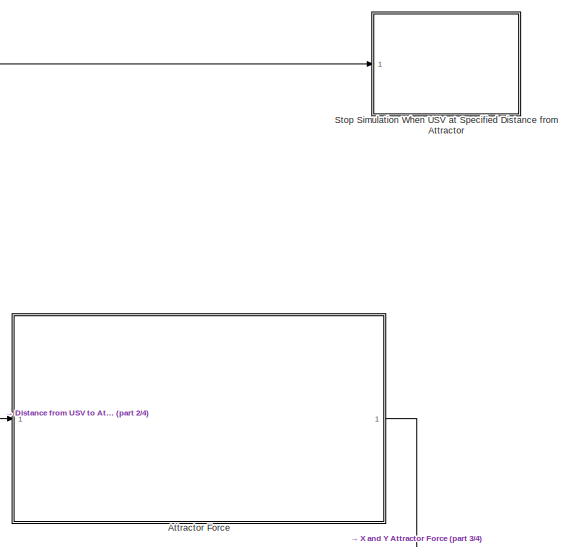
[diagram: root canvas - part 1/4, top center region]
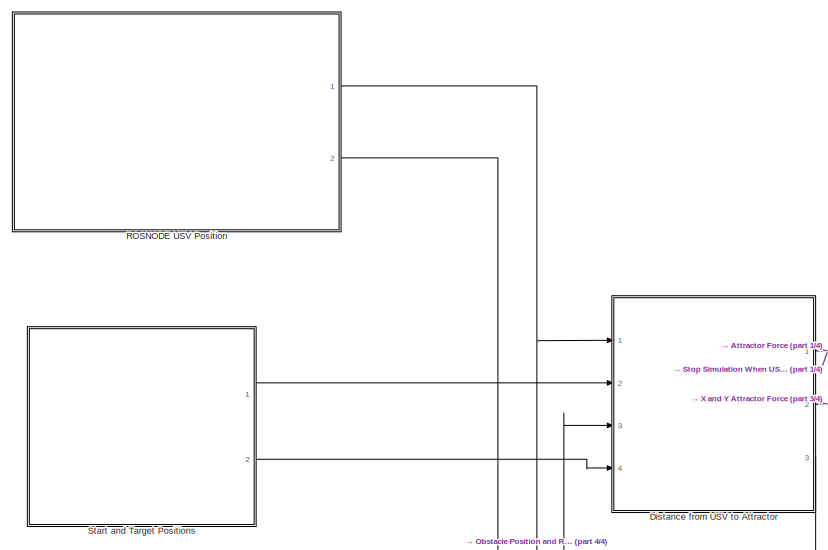
[diagram: root canvas - part 2/4, top left region]
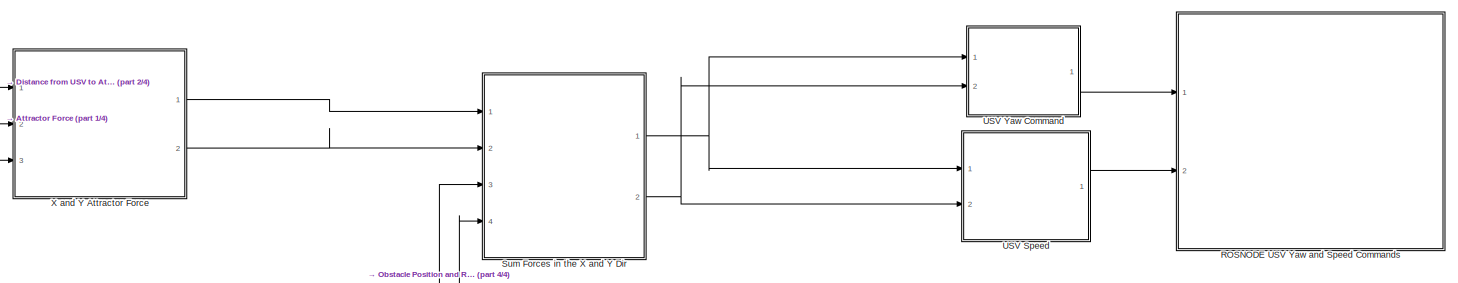
[diagram: root canvas - part 3/4, bottom right region]
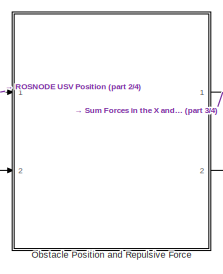
[diagram: root canvas - part 4/4, bottom center region]
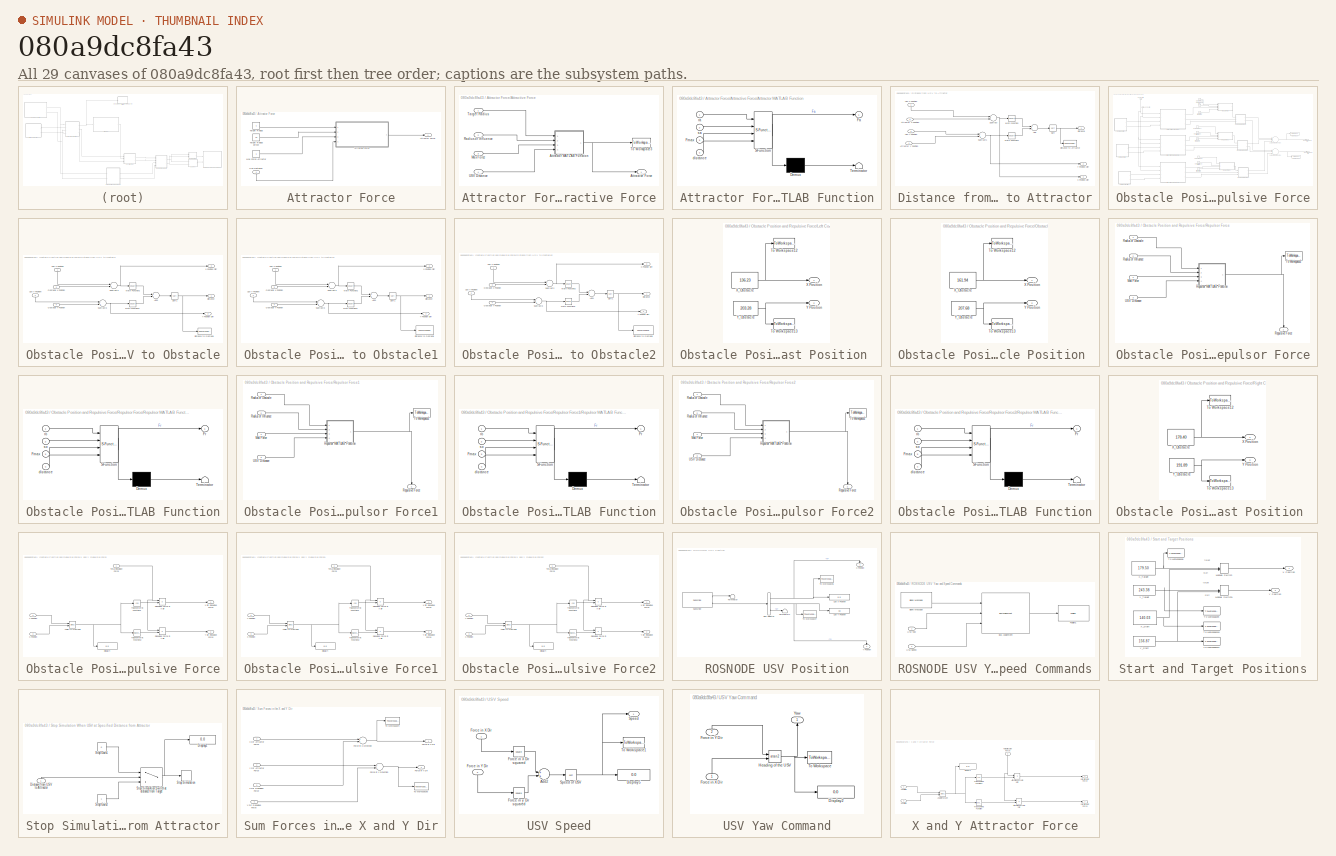
[diagram: thumbnail index - all 29 canvases of the model, root first then tree order]
MODEL slx_080a9dc8fa43
KIND model
CONFIG AbsTol = auto
CONFIG FixedStep = auto
CONFIG MaxStep = auto
CONFIG MinStep = auto
CONFIG RelTol = 1e-3
CONFIG SampleTimeConstraint = Unconstrained
CONFIG Solver = VariableStepAuto
CONFIG SolverMode = Auto
CONFIG SolverName = VariableStepAuto
CONFIG StartTime = 0.0
CONFIG StopTime = inf
BLOCK [SubSystem] Attractor Force
  Ports = [1, 1]
  RequestExecContextInheritance = off
  Variant = off
BLOCK [SubSystem] Attractor Force/Attractive Force
  Ports = [4, 1]
  RequestExecContextInheritance = off
  Variant = off
BLOCK [Outport] Attractor Force/Attractive Force/Attractive Force
  IconDisplay = Port number
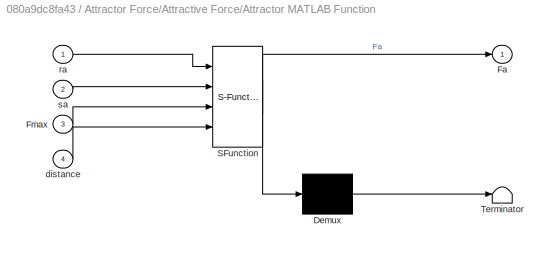
BLOCK [SubSystem] Attractor Force/Attractive Force/Attractor MATLAB Function
  ErrorFcn = Stateflow.Translate.translate
  PermitHierarchicalResolution = ExplicitOnly
  Ports = [4, 1]
  RequestExecContextInheritance = off
  SFBlockType = MATLAB Function
  TreatAsAtomicUnit = on
  Variant = off
BLOCK [Demux] Attractor Force/Attractive Force/Attractor MATLAB Function/ Demux 
  Outputs = 1
  Ports = [1, 1]
BLOCK [S-Function] Attractor Force/Attractive Force/Attractor MATLAB Function/ SFunction 
  EnableBusSupport = on
  FunctionName = sf_sfun
  PortCounts = [4 2]
  Ports = [4, 2]
  SFunctionDeploymentMode = off
  Tag = Stateflow S-Function pot_field_3obs 2
BLOCK [Terminator] Attractor Force/Attractive Force/Attractor MATLAB Function/ Terminator 
BLOCK [Outport] Attractor Force/Attractive Force/Attractor MATLAB Function/Fa
  IconDisplay = Port number
BLOCK [Inport] Attractor Force/Attractive Force/Attractor MATLAB Function/Fmax
  IconDisplay = Port number
  Port = 3
BLOCK [Inport] Attractor Force/Attractive Force/Attractor MATLAB Function/distance
  IconDisplay = Port number
  Port = 4
BLOCK [Inport] Attractor Force/Attractive Force/Attractor MATLAB Function/ra
  IconDisplay = Port number
BLOCK [Inport] Attractor Force/Attractive Force/Attractor MATLAB Function/sa
  IconDisplay = Port number
  Port = 2
BLOCK [Inport] Attractor Force/Attractive Force/Max Force
  IconDisplay = Port number
  Port = 3
BLOCK [Inport] Attractor Force/Attractive Force/Radius of Influence
  IconDisplay = Port number
  Port = 2
BLOCK [Inport] Attractor Force/Attractive Force/Target Radius
  IconDisplay = Port number
BLOCK [ToWorkspace] Attractor Force/Attractive Force/To Workspace3
  FixptAsFi = on
  MaxDataPoints = inf
  Ports = [1]
  SampleTime = -1
  Save2DSignal = 3-D array (concatenate along third dimension)
  SaveFormat = Timeseries
  VariableName = Fatr
BLOCK [Inport] Attractor Force/Attractive Force/USV Distance
  IconDisplay = Port number
  Port = 4
BLOCK [Outport] Attractor Force/Attractor Force
  IconDisplay = Port number
BLOCK [Constant] Attractor Force/Max Force Attractor
  OutDataTypeStr = Inherit: Inherit via back propagation
BLOCK [Constant] Attractor Force/Target Radius
  OutDataTypeStr = Inherit: Inherit via back propagation
BLOCK [Constant] Attractor Force/Target Radius Effect
  OutDataTypeStr = Inherit: Inherit via back propagation
  Value = 10
BLOCK [Inport] Attractor Force/USV Distance
  IconDisplay = Port number
BLOCK [SubSystem] Distance from USV to Attractor
  Ports = [4, 3]
  RequestExecContextInheritance = off
  Variant = off
BLOCK [Sum] Distance from USV to Attractor/Add
  InputSameDT = off
  OutDataTypeStr = Inherit: Inherit via back propagation
  Ports = [2, 1]
  SaturateOnIntegerOverflow = off
BLOCK [Inport] Distance from USV to Attractor/Attractor X Position
  IconDisplay = Port number
  Port = 2
BLOCK [Inport] Distance from USV to Attractor/Attractor Y Position
  IconDisplay = Port number
  Port = 4
BLOCK [Outport] Distance from USV to Attractor/Distance
  IconDisplay = Port number
BLOCK [ToWorkspace] Distance from USV to Attractor/Distance to Attractor
  FixptAsFi = on
  MaxDataPoints = inf
  Ports = [1]
  SampleTime = -1
  Save2DSignal = 3-D array (concatenate along third dimension)
  SaveFormat = Timeseries
  VariableName = Dist2Target
BLOCK [Math] Distance from USV to Attractor/Math Function
  Operator = square
  OutDataTypeStr = Inherit: Inherit via back propagation
  Ports = [1, 1]
BLOCK [Math] Distance from USV to Attractor/Math Function1
  Operator = square
  OutDataTypeStr = Inherit: Inherit via back propagation
  Ports = [1, 1]
BLOCK [Sqrt] Distance from USV to Attractor/Sqrt
  OutDataTypeStr = Inherit: Inherit via back propagation
BLOCK [Sum] Distance from USV to Attractor/Subtract
  InputSameDT = off
  Inputs = -+
  OutDataTypeStr = Inherit: Inherit via back propagation
  Ports = [2, 1]
  SaturateOnIntegerOverflow = off
BLOCK [Sum] Distance from USV to Attractor/Subtract1
  InputSameDT = off
  Inputs = -+
  OutDataTypeStr = Inherit: Inherit via back propagation
  Ports = [2, 1]
  SaturateOnIntegerOverflow = off
BLOCK [Inport] Distance from USV to Attractor/USV X Position
  IconDisplay = Port number
BLOCK [Inport] Distance from USV to Attractor/USV Y Position
  IconDisplay = Port number
  Port = 3
BLOCK [Outport] Distance from USV to Attractor/X Position Diff
  IconDisplay = Port number
  Port = 3
BLOCK [Outport] Distance from USV to Attractor/Y Position Diff
  IconDisplay = Port number
  Port = 2
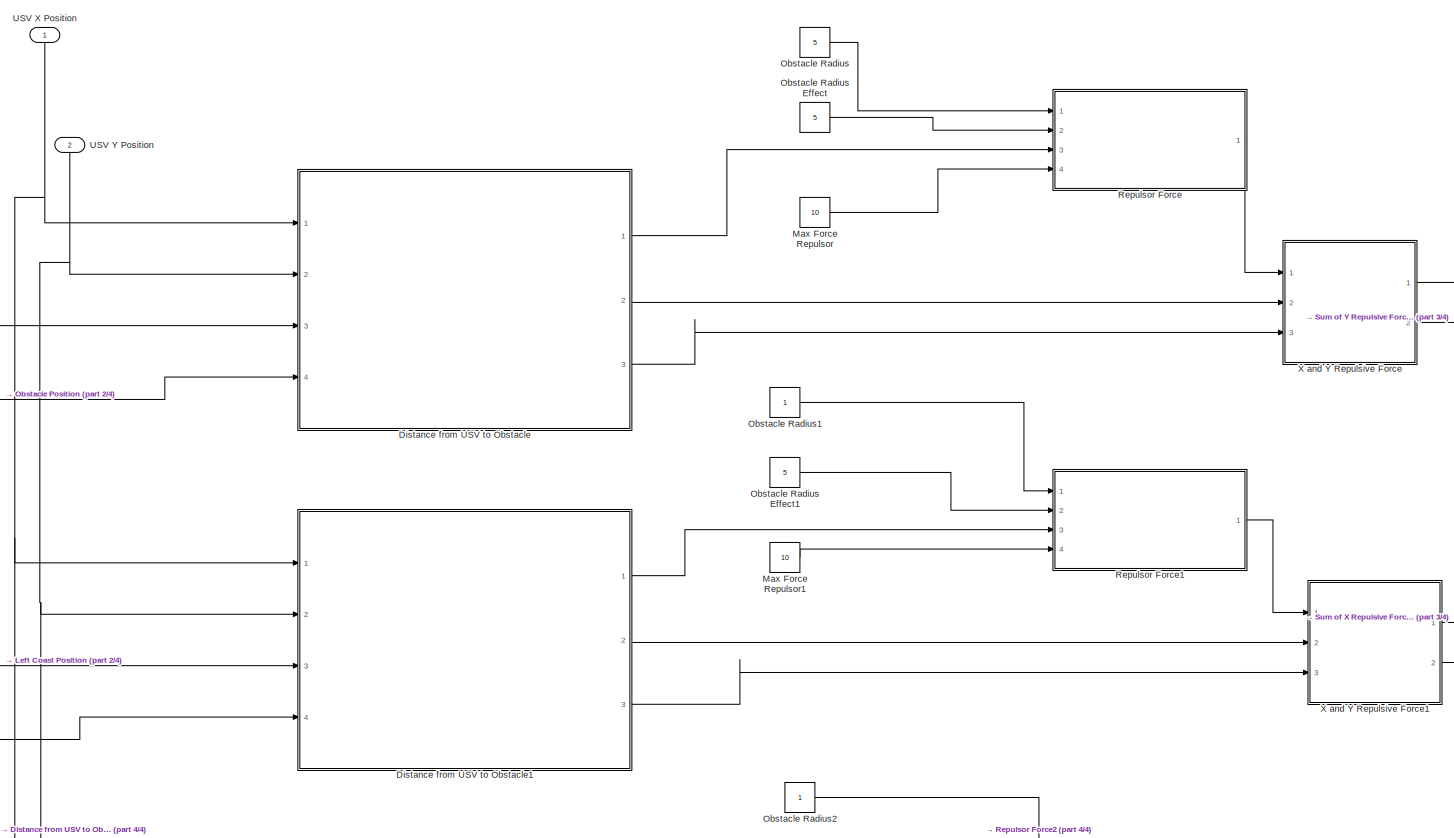
[diagram: Obstacle Position and Repulsive Force - part 1/4, central region]
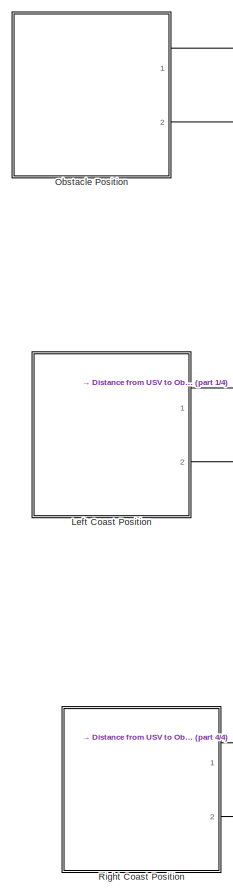
[diagram: Obstacle Position and Repulsive Force - part 2/4, left side, full height]
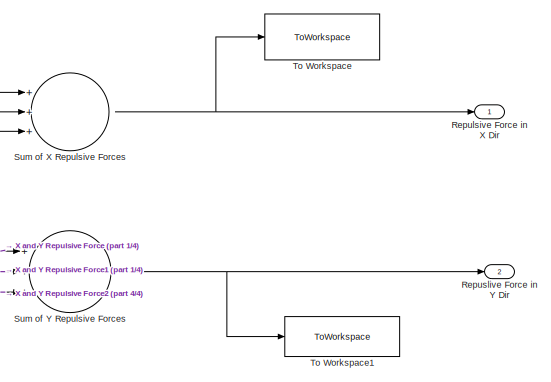
[diagram: Obstacle Position and Repulsive Force - part 3/4, middle right region]
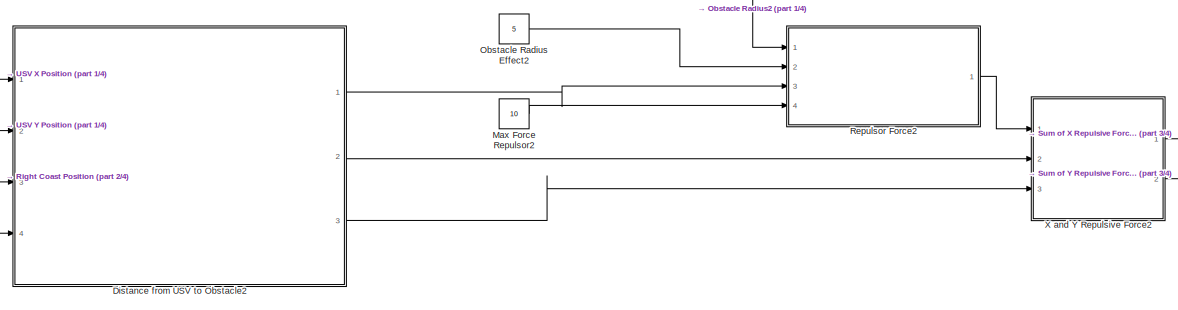
[diagram: Obstacle Position and Repulsive Force - part 4/4, bottom center region]
BLOCK [SubSystem] Obstacle Position and Repulsive Force
  Ports = [2, 2]
  RequestExecContextInheritance = off
  Variant = off
BLOCK [SubSystem] Obstacle Position and Repulsive Force/Distance from USV to Obstacle
  Ports = [4, 3]
  RequestExecContextInheritance = off
  Variant = off
BLOCK [Sum] Obstacle Position and Repulsive Force/Distance from USV to Obstacle/Add1
  InputSameDT = off
  OutDataTypeStr = Inherit: Inherit via back propagation
  Ports = [2, 1]
  SaturateOnIntegerOverflow = off
BLOCK [Outport] Obstacle Position and Repulsive Force/Distance from USV to Obstacle/Distance
  IconDisplay = Port number
BLOCK [ToWorkspace] Obstacle Position and Repulsive Force/Distance from USV to Obstacle/Distance to Obstacle
  FixptAsFi = on
  MaxDataPoints = inf
  Ports = [1]
  SampleTime = -1
  Save2DSignal = 3-D array (concatenate along third dimension)
  SaveFormat = Timeseries
  VariableName = Dist2Obs
BLOCK [Math] Obstacle Position and Repulsive Force/Distance from USV to Obstacle/Math Function2
  Operator = square
  OutDataTypeStr = Inherit: Inherit via back propagation
  Ports = [1, 1]
BLOCK [Math] Obstacle Position and Repulsive Force/Distance from USV to Obstacle/Math Function3
  Operator = square
  OutDataTypeStr = Inherit: Inherit via back propagation
  Ports = [1, 1]
BLOCK [Inport] Obstacle Position and Repulsive Force/Distance from USV to Obstacle/Obstacle X Position
  IconDisplay = Port number
  Port = 3
BLOCK [Inport] Obstacle Position and Repulsive Force/Distance from USV to Obstacle/Obstacle Y Position
  IconDisplay = Port number
  Port = 4
BLOCK [Sqrt] Obstacle Position and Repulsive Force/Distance from USV to Obstacle/Sqrt1
  OutDataTypeStr = Inherit: Inherit via back propagation
BLOCK [Sum] Obstacle Position and Repulsive Force/Distance from USV to Obstacle/Subtract2
  InputSameDT = off
  Inputs = -+
  OutDataTypeStr = Inherit: Inherit via back propagation
  Ports = [2, 1]
  SaturateOnIntegerOverflow = off
BLOCK [Sum] Obstacle Position and Repulsive Force/Distance from USV to Obstacle/Subtract3
  InputSameDT = off
  Inputs = -+
  OutDataTypeStr = Inherit: Inherit via back propagation
  Ports = [2, 1]
  SaturateOnIntegerOverflow = off
BLOCK [Inport] Obstacle Position and Repulsive Force/Distance from USV to Obstacle/USV X Position 
  IconDisplay = Port number
BLOCK [Inport] Obstacle Position and Repulsive Force/Distance from USV to Obstacle/USV Y Position
  IconDisplay = Port number
  Port = 2
BLOCK [Outport] Obstacle Position and Repulsive Force/Distance from USV to Obstacle/X Position Diff
  IconDisplay = Port number
  Port = 3
BLOCK [Outport] Obstacle Position and Repulsive Force/Distance from USV to Obstacle/Y Position Diff
  IconDisplay = Port number
  Port = 2
BLOCK [SubSystem] Obstacle Position and Repulsive Force/Distance from USV to Obstacle1
  Ports = [4, 3]
  RequestExecContextInheritance = off
  Variant = off
BLOCK [Sum] Obstacle Position and Repulsive Force/Distance from USV to Obstacle1/Add1
  InputSameDT = off
  OutDataTypeStr = Inherit: Inherit via back propagation
  Ports = [2, 1]
  SaturateOnIntegerOverflow = off
BLOCK [Outport] Obstacle Position and Repulsive Force/Distance from USV to Obstacle1/Distance
  IconDisplay = Port number
BLOCK [ToWorkspace] Obstacle Position and Repulsive Force/Distance from USV to Obstacle1/Distance to Obstacle
  FixptAsFi = on
  MaxDataPoints = inf
  Ports = [1]
  SampleTime = -1
  Save2DSignal = 3-D array (concatenate along third dimension)
  SaveFormat = Timeseries
  VariableName = Dist2LeftCoast
BLOCK [Math] Obstacle Position and Repulsive Force/Distance from USV to Obstacle1/Math Function2
  Operator = square
  OutDataTypeStr = Inherit: Inherit via back propagation
  Ports = [1, 1]
BLOCK [Math] Obstacle Position and Repulsive Force/Distance from USV to Obstacle1/Math Function3
  Operator = square
  OutDataTypeStr = Inherit: Inherit via back propagation
  Ports = [1, 1]
BLOCK [Inport] Obstacle Position and Repulsive Force/Distance from USV to Obstacle1/Obstacle X Position
  IconDisplay = Port number
  Port = 3
BLOCK [Inport] Obstacle Position and Repulsive Force/Distance from USV to Obstacle1/Obstacle Y Position
  IconDisplay = Port number
  Port = 4
BLOCK [Sqrt] Obstacle Position and Repulsive Force/Distance from USV to Obstacle1/Sqrt1
  OutDataTypeStr = Inherit: Inherit via back propagation
BLOCK [Sum] Obstacle Position and Repulsive Force/Distance from USV to Obstacle1/Subtract2
  InputSameDT = off
  Inputs = -+
  OutDataTypeStr = Inherit: Inherit via back propagation
  Ports = [2, 1]
  SaturateOnIntegerOverflow = off
BLOCK [Sum] Obstacle Position and Repulsive Force/Distance from USV to Obstacle1/Subtract3
  InputSameDT = off
  Inputs = -+
  OutDataTypeStr = Inherit: Inherit via back propagation
  Ports = [2, 1]
  SaturateOnIntegerOverflow = off
BLOCK [Inport] Obstacle Position and Repulsive Force/Distance from USV to Obstacle1/USV X Position 
  IconDisplay = Port number
BLOCK [Inport] Obstacle Position and Repulsive Force/Distance from USV to Obstacle1/USV Y Position
  IconDisplay = Port number
  Port = 2
BLOCK [Outport] Obstacle Position and Repulsive Force/Distance from USV to Obstacle1/X Position Diff
  IconDisplay = Port number
  Port = 3
BLOCK [Outport] Obstacle Position and Repulsive Force/Distance from USV to Obstacle1/Y Position Diff
  IconDisplay = Port number
  Port = 2
BLOCK [SubSystem] Obstacle Position and Repulsive Force/Distance from USV to Obstacle2
  Ports = [4, 3]
  RequestExecContextInheritance = off
  Variant = off
BLOCK [Sum] Obstacle Position and Repulsive Force/Distance from USV to Obstacle2/Add1
  InputSameDT = off
  OutDataTypeStr = Inherit: Inherit via back propagation
  Ports = [2, 1]
  SaturateOnIntegerOverflow = off
BLOCK [Outport] Obstacle Position and Repulsive Force/Distance from USV to Obstacle2/Distance
  IconDisplay = Port number
BLOCK [ToWorkspace] Obstacle Position and Repulsive Force/Distance from USV to Obstacle2/Distance to Obstacle
  FixptAsFi = on
  MaxDataPoints = inf
  Ports = [1]
  SampleTime = -1
  Save2DSignal = 3-D array (concatenate along third dimension)
  SaveFormat = Timeseries
  VariableName = Dist2RightCoast
BLOCK [Math] Obstacle Position and Repulsive Force/Distance from USV to Obstacle2/Math Function2
  Operator = square
  OutDataTypeStr = Inherit: Inherit via back propagation
  Ports = [1, 1]
BLOCK [Math] Obstacle Position and Repulsive Force/Distance from USV to Obstacle2/Math Function3
  Operator = square
  OutDataTypeStr = Inherit: Inherit via back propagation
  Ports = [1, 1]
BLOCK [Inport] Obstacle Position and Repulsive Force/Distance from USV to Obstacle2/Obstacle X Position
  IconDisplay = Port number
  Port = 3
BLOCK [Inport] Obstacle Position and Repulsive Force/Distance from USV to Obstacle2/Obstacle Y Position
  IconDisplay = Port number
  Port = 4
BLOCK [Sqrt] Obstacle Position and Repulsive Force/Distance from USV to Obstacle2/Sqrt1
  OutDataTypeStr = Inherit: Inherit via back propagation
BLOCK [Sum] Obstacle Position and Repulsive Force/Distance from USV to Obstacle2/Subtract2
  InputSameDT = off
  Inputs = -+
  OutDataTypeStr = Inherit: Inherit via back propagation
  Ports = [2, 1]
  SaturateOnIntegerOverflow = off
BLOCK [Sum] Obstacle Position and Repulsive Force/Distance from USV to Obstacle2/Subtract3
  InputSameDT = off
  Inputs = -+
  OutDataTypeStr = Inherit: Inherit via back propagation
  Ports = [2, 1]
  SaturateOnIntegerOverflow = off
BLOCK [Inport] Obstacle Position and Repulsive Force/Distance from USV to Obstacle2/USV X Position 
  IconDisplay = Port number
BLOCK [Inport] Obstacle Position and Repulsive Force/Distance from USV to Obstacle2/USV Y Position
  IconDisplay = Port number
  Port = 2
BLOCK [Outport] Obstacle Position and Repulsive Force/Distance from USV to Obstacle2/X Position Diff
  IconDisplay = Port number
  Port = 3
BLOCK [Outport] Obstacle Position and Repulsive Force/Distance from USV to Obstacle2/Y Position Diff
  IconDisplay = Port number
  Port = 2
BLOCK [SubSystem] Obstacle Position and Repulsive Force/Left Coast Position 
  Ports = [0, 2]
  RequestExecContextInheritance = off
  Variant = off
BLOCK [ToWorkspace] Obstacle Position and Repulsive Force/Left Coast Position /To Workspace12
  FixptAsFi = on
  MaxDataPoints = inf
  Ports = [1]
  SampleTime = -1
  Save2DSignal = 3-D array (concatenate along third dimension)
  SaveFormat = Timeseries
  VariableName = Xleftcoast
BLOCK [ToWorkspace] Obstacle Position and Repulsive Force/Left Coast Position /To Workspace13
  FixptAsFi = on
  MaxDataPoints = inf
  Ports = [1]
  SampleTime = -1
  Save2DSignal = 3-D array (concatenate along third dimension)
  SaveFormat = Timeseries
  VariableName = Yleftcoast
BLOCK [Outport] Obstacle Position and Repulsive Force/Left Coast Position /X Position
  IconDisplay = Port number
BLOCK [Constant] Obstacle Position and Repulsive Force/Left Coast Position /X_Obstacle 
  OutDataTypeStr = Inherit: Inherit via back propagation
  Value = 136.23
BLOCK [Outport] Obstacle Position and Repulsive Force/Left Coast Position /Y Position
  IconDisplay = Port number
  Port = 2
BLOCK [Constant] Obstacle Position and Repulsive Force/Left Coast Position /Y_Obstacle
  OutDataTypeStr = Inherit: Inherit via back propagation
  Value = 203.28
BLOCK [Constant] Obstacle Position and Repulsive Force/Max Force Repulsor
  OutDataTypeStr = Inherit: Inherit via back propagation
  Value = 10
BLOCK [Constant] Obstacle Position and Repulsive Force/Max Force Repulsor1
  OutDataTypeStr = Inherit: Inherit via back propagation
  Value = 10
BLOCK [Constant] Obstacle Position and Repulsive Force/Max Force Repulsor2
  OutDataTypeStr = Inherit: Inherit via back propagation
  Value = 10
BLOCK [SubSystem] Obstacle Position and Repulsive Force/Obstacle Position 
  Ports = [0, 2]
  RequestExecContextInheritance = off
  Variant = off
BLOCK [ToWorkspace] Obstacle Position and Repulsive Force/Obstacle Position /To Workspace12
  FixptAsFi = on
  MaxDataPoints = inf
  Ports = [1]
  SampleTime = -1
  Save2DSignal = 3-D array (concatenate along third dimension)
  SaveFormat = Timeseries
  VariableName = Xobstacle
BLOCK [ToWorkspace] Obstacle Position and Repulsive Force/Obstacle Position /To Workspace13
  FixptAsFi = on
  MaxDataPoints = inf
  Ports = [1]
  SampleTime = -1
  Save2DSignal = 3-D array (concatenate along third dimension)
  SaveFormat = Timeseries
  VariableName = Yobstacle
BLOCK [Outport] Obstacle Position and Repulsive Force/Obstacle Position /X Position
  IconDisplay = Port number
BLOCK [Constant] Obstacle Position and Repulsive Force/Obstacle Position /X_Obstacle 
  OutDataTypeStr = Inherit: Inherit via back propagation
  Value = 161.94
BLOCK [Outport] Obstacle Position and Repulsive Force/Obstacle Position /Y Position
  IconDisplay = Port number
  Port = 2
BLOCK [Constant] Obstacle Position and Repulsive Force/Obstacle Position /Y_Obstacle
  OutDataTypeStr = Inherit: Inherit via back propagation
  Value = 207.68
BLOCK [Constant] Obstacle Position and Repulsive Force/Obstacle Radius
  OutDataTypeStr = Inherit: Inherit via back propagation
  Value = 5
BLOCK [Constant] Obstacle Position and Repulsive Force/Obstacle Radius Effect
  OutDataTypeStr = Inherit: Inherit via back propagation
  Value = 5
BLOCK [Constant] Obstacle Position and Repulsive Force/Obstacle Radius Effect1
  OutDataTypeStr = Inherit: Inherit via back propagation
  Value = 5
BLOCK [Constant] Obstacle Position and Repulsive Force/Obstacle Radius Effect2
  OutDataTypeStr = Inherit: Inherit via back propagation
  Value = 5
BLOCK [Constant] Obstacle Position and Repulsive Force/Obstacle Radius1
  OutDataTypeStr = Inherit: Inherit via back propagation
BLOCK [Constant] Obstacle Position and Repulsive Force/Obstacle Radius2
  OutDataTypeStr = Inherit: Inherit via back propagation
BLOCK [Outport] Obstacle Position and Repulsive Force/Repulsive Force in X Dir
  IconDisplay = Port number
BLOCK [SubSystem] Obstacle Position and Repulsive Force/Repulsor Force
  Ports = [4, 1]
  RequestExecContextInheritance = off
  Variant = off
BLOCK [Inport] Obstacle Position and Repulsive Force/Repulsor Force/Max Force
  IconDisplay = Port number
  Port = 4
BLOCK [Inport] Obstacle Position and Repulsive Force/Repulsor Force/Radius of Influence
  IconDisplay = Port number
  Port = 2
BLOCK [Inport] Obstacle Position and Repulsive Force/Repulsor Force/Radius of Obstacle 
  IconDisplay = Port number
BLOCK [Outport] Obstacle Position and Repulsive Force/Repulsor Force/Repulsive Force
  IconDisplay = Port number
BLOCK [SubSystem] Obstacle Position and Repulsive Force/Repulsor Force/Repulsor MATLAB Function
  ErrorFcn = Stateflow.Translate.translate
  PermitHierarchicalResolution = ExplicitOnly
  Ports = [4, 1]
  RequestExecContextInheritance = off
  SFBlockType = MATLAB Function
  TreatAsAtomicUnit = on
  Variant = off
BLOCK [Demux] Obstacle Position and Repulsive Force/Repulsor Force/Repulsor MATLAB Function/ Demux 
  Outputs = 1
  Ports = [1, 1]
BLOCK [S-Function] Obstacle Position and Repulsive Force/Repulsor Force/Repulsor MATLAB Function/ SFunction 
  EnableBusSupport = on
  FunctionName = sf_sfun
  PortCounts = [4 2]
  Ports = [4, 2]
  SFunctionDeploymentMode = off
  Tag = Stateflow S-Function pot_field_3obs 1
BLOCK [Terminator] Obstacle Position and Repulsive Force/Repulsor Force/Repulsor MATLAB Function/ Terminator 
BLOCK [Inport] Obstacle Position and Repulsive Force/Repulsor Force/Repulsor MATLAB Function/Fmax
  IconDisplay = Port number
  Port = 3
BLOCK [Outport] Obstacle Position and Repulsive Force/Repulsor Force/Repulsor MATLAB Function/Fr
  IconDisplay = Port number
BLOCK [Inport] Obstacle Position and Repulsive Force/Repulsor Force/Repulsor MATLAB Function/distance
  IconDisplay = Port number
  Port = 4
BLOCK [Inport] Obstacle Position and Repulsive Force/Repulsor Force/Repulsor MATLAB Function/ro
  IconDisplay = Port number
BLOCK [Inport] Obstacle Position and Repulsive Force/Repulsor Force/Repulsor MATLAB Function/so
  IconDisplay = Port number
  Port = 2
BLOCK [ToWorkspace] Obstacle Position and Repulsive Force/Repulsor Force/To Workspace2
  FixptAsFi = on
  MaxDataPoints = inf
  Ports = [1]
  SampleTime = -1
  Save2DSignal = 3-D array (concatenate along third dimension)
  SaveFormat = Timeseries
  VariableName = Frep
BLOCK [Inport] Obstacle Position and Repulsive Force/Repulsor Force/USV Distance
  IconDisplay = Port number
  Port = 3
BLOCK [SubSystem] Obstacle Position and Repulsive Force/Repulsor Force1
  Ports = [4, 1]
  RequestExecContextInheritance = off
  Variant = off
BLOCK [Inport] Obstacle Position and Repulsive Force/Repulsor Force1/Max Force
  IconDisplay = Port number
  Port = 4
BLOCK [Inport] Obstacle Position and Repulsive Force/Repulsor Force1/Radius of Influence
  IconDisplay = Port number
  Port = 2
BLOCK [Inport] Obstacle Position and Repulsive Force/Repulsor Force1/Radius of Obstacle 
  IconDisplay = Port number
BLOCK [Outport] Obstacle Position and Repulsive Force/Repulsor Force1/Repulsive Force
  IconDisplay = Port number
BLOCK [SubSystem] Obstacle Position and Repulsive Force/Repulsor Force1/Repulsor MATLAB Function
  ErrorFcn = Stateflow.Translate.translate
  PermitHierarchicalResolution = ExplicitOnly
  Ports = [4, 1]
  RequestExecContextInheritance = off
  SFBlockType = MATLAB Function
  TreatAsAtomicUnit = on
  Variant = off
BLOCK [Demux] Obstacle Position and Repulsive Force/Repulsor Force1/Repulsor MATLAB Function/ Demux 
  Outputs = 1
  Ports = [1, 1]
BLOCK [S-Function] Obstacle Position and Repulsive Force/Repulsor Force1/Repulsor MATLAB Function/ SFunction 
  EnableBusSupport = on
  FunctionName = sf_sfun
  PortCounts = [4 2]
  Ports = [4, 2]
  SFunctionDeploymentMode = off
  Tag = Stateflow S-Function pot_field_3obs 3
BLOCK [Terminator] Obstacle Position and Repulsive Force/Repulsor Force1/Repulsor MATLAB Function/ Terminator 
BLOCK [Inport] Obstacle Position and Repulsive Force/Repulsor Force1/Repulsor MATLAB Function/Fmax
  IconDisplay = Port number
  Port = 3
BLOCK [Outport] Obstacle Position and Repulsive Force/Repulsor Force1/Repulsor MATLAB Function/Fr
  IconDisplay = Port number
BLOCK [Inport] Obstacle Position and Repulsive Force/Repulsor Force1/Repulsor MATLAB Function/distance
  IconDisplay = Port number
  Port = 4
BLOCK [Inport] Obstacle Position and Repulsive Force/Repulsor Force1/Repulsor MATLAB Function/ro
  IconDisplay = Port number
BLOCK [Inport] Obstacle Position and Repulsive Force/Repulsor Force1/Repulsor MATLAB Function/so
  IconDisplay = Port number
  Port = 2
BLOCK [ToWorkspace] Obstacle Position and Repulsive Force/Repulsor Force1/To Workspace2
  FixptAsFi = on
  MaxDataPoints = inf
  Ports = [1]
  SampleTime = -1
  Save2DSignal = 3-D array (concatenate along third dimension)
  SaveFormat = Timeseries
  VariableName = FrepLC
BLOCK [Inport] Obstacle Position and Repulsive Force/Repulsor Force1/USV Distance
  IconDisplay = Port number
  Port = 3
BLOCK [SubSystem] Obstacle Position and Repulsive Force/Repulsor Force2
  Ports = [4, 1]
  RequestExecContextInheritance = off
  Variant = off
BLOCK [Inport] Obstacle Position and Repulsive Force/Repulsor Force2/Max Force
  IconDisplay = Port number
  Port = 4
BLOCK [Inport] Obstacle Position and Repulsive Force/Repulsor Force2/Radius of Influence
  IconDisplay = Port number
  Port = 2
BLOCK [Inport] Obstacle Position and Repulsive Force/Repulsor Force2/Radius of Obstacle 
  IconDisplay = Port number
BLOCK [Outport] Obstacle Position and Repulsive Force/Repulsor Force2/Repulsive Force
  IconDisplay = Port number
BLOCK [SubSystem] Obstacle Position and Repulsive Force/Repulsor Force2/Repulsor MATLAB Function
  ErrorFcn = Stateflow.Translate.translate
  PermitHierarchicalResolution = ExplicitOnly
  Ports = [4, 1]
  RequestExecContextInheritance = off
  SFBlockType = MATLAB Function
  TreatAsAtomicUnit = on
  Variant = off
BLOCK [Demux] Obstacle Position and Repulsive Force/Repulsor Force2/Repulsor MATLAB Function/ Demux 
  Outputs = 1
  Ports = [1, 1]
BLOCK [S-Function] Obstacle Position and Repulsive Force/Repulsor Force2/Repulsor MATLAB Function/ SFunction 
  EnableBusSupport = on
  FunctionName = sf_sfun
  PortCounts = [4 2]
  Ports = [4, 2]
  SFunctionDeploymentMode = off
  Tag = Stateflow S-Function pot_field_3obs 4
BLOCK [Terminator] Obstacle Position and Repulsive Force/Repulsor Force2/Repulsor MATLAB Function/ Terminator 
BLOCK [Inport] Obstacle Position and Repulsive Force/Repulsor Force2/Repulsor MATLAB Function/Fmax
  IconDisplay = Port number
  Port = 3
BLOCK [Outport] Obstacle Position and Repulsive Force/Repulsor Force2/Repulsor MATLAB Function/Fr
  IconDisplay = Port number
BLOCK [Inport] Obstacle Position and Repulsive Force/Repulsor Force2/Repulsor MATLAB Function/distance
  IconDisplay = Port number
  Port = 4
BLOCK [Inport] Obstacle Position and Repulsive Force/Repulsor Force2/Repulsor MATLAB Function/ro
  IconDisplay = Port number
BLOCK [Inport] Obstacle Position and Repulsive Force/Repulsor Force2/Repulsor MATLAB Function/so
  IconDisplay = Port number
  Port = 2
BLOCK [ToWorkspace] Obstacle Position and Repulsive Force/Repulsor Force2/To Workspace2
  FixptAsFi = on
  MaxDataPoints = inf
  Ports = [1]
  SampleTime = -1
  Save2DSignal = 3-D array (concatenate along third dimension)
  SaveFormat = Timeseries
  VariableName = FrepRC
BLOCK [Inport] Obstacle Position and Repulsive Force/Repulsor Force2/USV Distance
  IconDisplay = Port number
  Port = 3
BLOCK [Outport] Obstacle Position and Repulsive Force/Repuslive Force in Y Dir
  IconDisplay = Port number
  Port = 2
BLOCK [SubSystem] Obstacle Position and Repulsive Force/Right Coast Position 
  Ports = [0, 2]
  RequestExecContextInheritance = off
  Variant = off
BLOCK [ToWorkspace] Obstacle Position and Repulsive Force/Right Coast Position /To Workspace12
  FixptAsFi = on
  MaxDataPoints = inf
  Ports = [1]
  SampleTime = -1
  Save2DSignal = 3-D array (concatenate along third dimension)
  SaveFormat = Timeseries
  VariableName = Xrightcoast
BLOCK [ToWorkspace] Obstacle Position and Repulsive Force/Right Coast Position /To Workspace13
  FixptAsFi = on
  MaxDataPoints = inf
  Ports = [1]
  SampleTime = -1
  Save2DSignal = 3-D array (concatenate along third dimension)
  SaveFormat = Timeseries
  VariableName = Yrightcoast
BLOCK [Outport] Obstacle Position and Repulsive Force/Right Coast Position /X Position
  IconDisplay = Port number
BLOCK [Constant] Obstacle Position and Repulsive Force/Right Coast Position /X_Obstacle 
  OutDataTypeStr = Inherit: Inherit via back propagation
  Value = 178.40
BLOCK [Outport] Obstacle Position and Repulsive Force/Right Coast Position /Y Position
  IconDisplay = Port number
  Port = 2
BLOCK [Constant] Obstacle Position and Repulsive Force/Right Coast Position /Y_Obstacle
  OutDataTypeStr = Inherit: Inherit via back propagation
  Value = 191.89
BLOCK [Sum] Obstacle Position and Repulsive Force/Sum of X Repulsive Forces 
  InputSameDT = off
  Inputs = +++
  OutDataTypeStr = Inherit: Inherit via internal rule
  Ports = [3, 1]
  SaturateOnIntegerOverflow = off
BLOCK [Sum] Obstacle Position and Repulsive Force/Sum of Y Repulsive Forces 
  InputSameDT = off
  Inputs = +++
  OutDataTypeStr = Inherit: Inherit via internal rule
  Ports = [3, 1]
  SaturateOnIntegerOverflow = off
BLOCK [ToWorkspace] Obstacle Position and Repulsive Force/To Workspace
  FixptAsFi = on
  MaxDataPoints = inf
  Ports = [1]
  SampleTime = -1
  Save2DSignal = 3-D array (concatenate along third dimension)
  SaveFormat = Timeseries
  VariableName = SumXRepForces
BLOCK [ToWorkspace] Obstacle Position and Repulsive Force/To Workspace1
  FixptAsFi = on
  MaxDataPoints = inf
  Ports = [1]
  SampleTime = -1
  Save2DSignal = 3-D array (concatenate along third dimension)
  SaveFormat = Timeseries
  VariableName = SumYRepForces
BLOCK [Inport] Obstacle Position and Repulsive Force/USV X Position
  IconDisplay = Port number
BLOCK [Inport] Obstacle Position and Repulsive Force/USV Y Position
  IconDisplay = Port number
  Port = 2
BLOCK [SubSystem] Obstacle Position and Repulsive Force/X and Y Repulsive Force
  Ports = [3, 2]
  RequestExecContextInheritance = off
  Variant = off
BLOCK [Trigonometry] Obstacle Position and Repulsive Force/X and Y Repulsive Force/Angle to Obstacle
  Operator = atan2
  Ports = [2, 1]
BLOCK [Display] Obstacle Position and Repulsive Force/X and Y Repulsive Force/Display4
  Decimation = 1
  Ports = [1]
BLOCK [Product] Obstacle Position and Repulsive Force/X and Y Repulsive Force/Repulsive Force in X Dir
  InputSameDT = off
  OutDataTypeStr = Inherit: Inherit via back propagation
  Ports = [2, 1]
  RndMeth = Floor
  SaturateOnIntegerOverflow = off
BLOCK [Product] Obstacle Position and Repulsive Force/X and Y Repulsive Force/Repulsive Force in Y Dir
  InputSameDT = off
  OutDataTypeStr = Inherit: Inherit via back propagation
  Ports = [2, 1]
  RndMeth = Floor
  SaturateOnIntegerOverflow = off
BLOCK [Inport] Obstacle Position and Repulsive Force/X and Y Repulsive Force/Total Repulsive Force
  IconDisplay = Port number
BLOCK [Trigonometry] Obstacle Position and Repulsive Force/X and Y Repulsive Force/Trigonometric Function2
  Ports = [1, 1]
BLOCK [Trigonometry] Obstacle Position and Repulsive Force/X and Y Repulsive Force/Trigonometric Function3
  Operator = cos
  Ports = [1, 1]
BLOCK [Outport] Obstacle Position and Repulsive Force/X and Y Repulsive Force/X Dir Repulsive Force
  IconDisplay = Port number
BLOCK [Inport] Obstacle Position and Repulsive Force/X and Y Repulsive Force/X Position
  IconDisplay = Port number
  Port = 3
BLOCK [Outport] Obstacle Position and Repulsive Force/X and Y Repulsive Force/Y Dir Repulsive Force
  IconDisplay = Port number
  Port = 2
BLOCK [Inport] Obstacle Position and Repulsive Force/X and Y Repulsive Force/Y Position
  IconDisplay = Port number
  Port = 2
BLOCK [SubSystem] Obstacle Position and Repulsive Force/X and Y Repulsive Force1
  Ports = [3, 2]
  RequestExecContextInheritance = off
  Variant = off
BLOCK [Trigonometry] Obstacle Position and Repulsive Force/X and Y Repulsive Force1/Angle to Obstacle
  Operator = atan2
  Ports = [2, 1]
BLOCK [Display] Obstacle Position and Repulsive Force/X and Y Repulsive Force1/Display4
  Decimation = 1
  Ports = [1]
BLOCK [Product] Obstacle Position and Repulsive Force/X and Y Repulsive Force1/Repulsive Force in X Dir
  InputSameDT = off
  OutDataTypeStr = Inherit: Inherit via back propagation
  Ports = [2, 1]
  RndMeth = Floor
  SaturateOnIntegerOverflow = off
BLOCK [Product] Obstacle Position and Repulsive Force/X and Y Repulsive Force1/Repulsive Force in Y Dir
  InputSameDT = off
  OutDataTypeStr = Inherit: Inherit via back propagation
  Ports = [2, 1]
  RndMeth = Floor
  SaturateOnIntegerOverflow = off
BLOCK [Inport] Obstacle Position and Repulsive Force/X and Y Repulsive Force1/Total Repulsive Force
  IconDisplay = Port number
BLOCK [Trigonometry] Obstacle Position and Repulsive Force/X and Y Repulsive Force1/Trigonometric Function2
  Ports = [1, 1]
BLOCK [Trigonometry] Obstacle Position and Repulsive Force/X and Y Repulsive Force1/Trigonometric Function3
  Operator = cos
  Ports = [1, 1]
BLOCK [Outport] Obstacle Position and Repulsive Force/X and Y Repulsive Force1/X Dir Repulsive Force
  IconDisplay = Port number
BLOCK [Inport] Obstacle Position and Repulsive Force/X and Y Repulsive Force1/X Position
  IconDisplay = Port number
  Port = 3
BLOCK [Outport] Obstacle Position and Repulsive Force/X and Y Repulsive Force1/Y Dir Repulsive Force
  IconDisplay = Port number
  Port = 2
BLOCK [Inport] Obstacle Position and Repulsive Force/X and Y Repulsive Force1/Y Position
  IconDisplay = Port number
  Port = 2
BLOCK [SubSystem] Obstacle Position and Repulsive Force/X and Y Repulsive Force2
  Ports = [3, 2]
  RequestExecContextInheritance = off
  Variant = off
BLOCK [Trigonometry] Obstacle Position and Repulsive Force/X and Y Repulsive Force2/Angle to Obstacle
  Operator = atan2
  Ports = [2, 1]
BLOCK [Display] Obstacle Position and Repulsive Force/X and Y Repulsive Force2/Display4
  Decimation = 1
  Ports = [1]
BLOCK [Product] Obstacle Position and Repulsive Force/X and Y Repulsive Force2/Repulsive Force in X Dir
  InputSameDT = off
  OutDataTypeStr = Inherit: Inherit via back propagation
  Ports = [2, 1]
  RndMeth = Floor
  SaturateOnIntegerOverflow = off
BLOCK [Product] Obstacle Position and Repulsive Force/X and Y Repulsive Force2/Repulsive Force in Y Dir
  InputSameDT = off
  OutDataTypeStr = Inherit: Inherit via back propagation
  Ports = [2, 1]
  RndMeth = Floor
  SaturateOnIntegerOverflow = off
BLOCK [Inport] Obstacle Position and Repulsive Force/X and Y Repulsive Force2/Total Repulsive Force
  IconDisplay = Port number
BLOCK [Trigonometry] Obstacle Position and Repulsive Force/X and Y Repulsive Force2/Trigonometric Function2
  Ports = [1, 1]
BLOCK [Trigonometry] Obstacle Position and Repulsive Force/X and Y Repulsive Force2/Trigonometric Function3
  Operator = cos
  Ports = [1, 1]
BLOCK [Outport] Obstacle Position and Repulsive Force/X and Y Repulsive Force2/X Dir Repulsive Force
  IconDisplay = Port number
BLOCK [Inport] Obstacle Position and Repulsive Force/X and Y Repulsive Force2/X Position
  IconDisplay = Port number
  Port = 3
BLOCK [Outport] Obstacle Position and Repulsive Force/X and Y Repulsive Force2/Y Dir Repulsive Force
  IconDisplay = Port number
  Port = 2
BLOCK [Inport] Obstacle Position and Repulsive Force/X and Y Repulsive Force2/Y Position
  IconDisplay = Port number
  Port = 2
BLOCK [SubSystem] ROSNODE USV Position
  Ports = [0, 2]
  RequestExecContextInheritance = off
  Variant = off
BLOCK [BusSelector] ROSNODE USV Position/Bus Selector
  OutputSignals = Pose.Pose.Position.X,Pose.Pose.Position.Y,Pose.Pose.Position.Z
  Ports = [1, 3]
BLOCK [Reference] ROSNODE USV Position/Subscribe  REF=robotlib/Subscribe
  Ports = [0, 2]
  SourceBlock = robotlib/Subscribe
  SourceLibraryInfo = This block requires Robotics System Toolbox
  SourceType = ROS Subscribe
BLOCK [Terminator] ROSNODE USV Position/Terminator
BLOCK [Terminator] ROSNODE USV Position/Terminator1
BLOCK [ToWorkspace] ROSNODE USV Position/To Workspace6
  FixptAsFi = on
  MaxDataPoints = inf
  Ports = [1]
  SampleTime = -1
  Save2DSignal = 3-D array (concatenate along third dimension)
  SaveFormat = Timeseries
  VariableName = Xusv
BLOCK [ToWorkspace] ROSNODE USV Position/To Workspace7
  FixptAsFi = on
  MaxDataPoints = inf
  Ports = [1]
  SampleTime = -1
  Save2DSignal = 3-D array (concatenate along third dimension)
  SaveFormat = Timeseries
  VariableName = Yusv
BLOCK [Display] ROSNODE USV Position/USV X Position
  Decimation = 1
  Ports = [1]
BLOCK [Display] ROSNODE USV Position/USV Y Position
  Decimation = 1
  Ports = [1]
BLOCK [Outport] ROSNODE USV Position/X Position
  IconDisplay = Port number
BLOCK [Outport] ROSNODE USV Position/Y Position
  IconDisplay = Port number
  Port = 2
BLOCK [SubSystem] ROSNODE USV Yaw and Speed Commands
  Ports = [2]
  RequestExecContextInheritance = off
  Variant = off
BLOCK [Reference] ROSNODE USV Yaw and Speed Commands/Blank Message  REF=robotlib/Blank Message
  Ports = [0, 1]
  SourceBlock = robotlib/Blank Message
  SourceLibraryInfo = This block requires Robotics System Toolbox
  SourceType = ROS Blank Message
BLOCK [BusAssignment] ROSNODE USV Yaw and Speed Commands/Bus Assignment
  AssignedSignals = Yaw,Speed
  Ports = [3, 1]
BLOCK [Reference] ROSNODE USV Yaw and Speed Commands/Publish1  REF=robotlib/Publish
  AttributesFormatString = %<messageType>
  Ports = [1]
  SourceBlock = robotlib/Publish
  SourceLibraryInfo = This block requires Robotics System Toolbox
  SourceType = ROS Publish
BLOCK [Inport] ROSNODE USV Yaw and Speed Commands/USV Speed
  IconDisplay = Port number
  Port = 2
BLOCK [Inport] ROSNODE USV Yaw and Speed Commands/USV Yaw
  IconDisplay = Port number
BLOCK [SubSystem] Start and Target Positions
  Ports = [0, 2]
  RequestExecContextInheritance = off
  Variant = off
BLOCK [ManualSwitch] Start and Target Positions/Manual Switch
  CurrentSetting = 0
BLOCK [ManualSwitch] Start and Target Positions/Manual Switch1
  CurrentSetting = 0
BLOCK [ToWorkspace] Start and Target Positions/To Workspace10
  FixptAsFi = on
  MaxDataPoints = inf
  Ports = [1]
  SampleTime = -1
  Save2DSignal = 3-D array (concatenate along third dimension)
  SaveFormat = Timeseries
  VariableName = Xstart
BLOCK [ToWorkspace] Start and Target Positions/To Workspace11
  FixptAsFi = on
  MaxDataPoints = inf
  Ports = [1]
  SampleTime = -1
  Save2DSignal = 3-D array (concatenate along third dimension)
  SaveFormat = Timeseries
  VariableName = Ystart
BLOCK [ToWorkspace] Start and Target Positions/To Workspace8
  FixptAsFi = on
  MaxDataPoints = inf
  Ports = [1]
  SampleTime = -1
  Save2DSignal = 3-D array (concatenate along third dimension)
  SaveFormat = Timeseries
  VariableName = Xtarget
BLOCK [ToWorkspace] Start and Target Positions/To Workspace9
  FixptAsFi = on
  MaxDataPoints = inf
  Ports = [1]
  SampleTime = -1
  Save2DSignal = 3-D array (concatenate along third dimension)
  SaveFormat = Timeseries
  VariableName = Ytarget
BLOCK [Outport] Start and Target Positions/X Position
  IconDisplay = Port number
BLOCK [Constant] Start and Target Positions/X_Start
  OutDataTypeStr = Inherit: Inherit via back propagation
  Value = 140.03
BLOCK [Constant] Start and Target Positions/X_Target
  OutDataTypeStr = Inherit: Inherit via back propagation
  Value = 179.50
BLOCK [Outport] Start and Target Positions/Y Position
  IconDisplay = Port number
  Port = 2
BLOCK [Constant] Start and Target Positions/Y_Start
  OutDataTypeStr = Inherit: Inherit via back propagation
  Value = 156.87
BLOCK [Constant] Start and Target Positions/Y_Target
  OutDataTypeStr = Inherit: Inherit via back propagation
  Value = 243.38
BLOCK [SubSystem] Stop Simulation When USV at Specified Distance from Attractor
  Ports = [1]
  RequestExecContextInheritance = off
  Variant = off
BLOCK [Display] Stop Simulation When USV at Specified Distance from Attractor/Display1
  Decimation = 1
  Ports = [1]
BLOCK [Inport] Stop Simulation When USV at Specified Distance from Attractor/Distance from USV to Attractor
  IconDisplay = Port number
BLOCK [Constant] Stop Simulation When USV at Specified Distance from Attractor/Stop Gain1
  OutDataTypeStr = Inherit: Inherit via back propagation
  Value = 0
BLOCK [Constant] Stop Simulation When USV at Specified Distance from Attractor/Stop Gain2
  OutDataTypeStr = Inherit: Inherit via back propagation
BLOCK [Stop] Stop Simulation When USV at Specified Distance from Attractor/Stop Simulation
BLOCK [Switch] Stop Simulation When USV at Specified Distance from Attractor/Stop Simulation Switch at distance from Target
  Criteria = u2 > Threshold
  InputSameDT = off
  SaturateOnIntegerOverflow = off
  Threshold = 2
BLOCK [SubSystem] Sum Forces in the X and Y Dir
  Ports = [4, 2]
  RequestExecContextInheritance = off
  Variant = off
BLOCK [Outport] Sum Forces in the X and Y Dir/Force in X Dir
  IconDisplay = Port number
BLOCK [Sum] Sum Forces in the X and Y Dir/Force in X Direction
  InputSameDT = off
  OutDataTypeStr = Inherit: Inherit via back propagation
  Ports = [2, 1]
  SaturateOnIntegerOverflow = off
BLOCK [Outport] Sum Forces in the X and Y Dir/Force in Y Dir
  IconDisplay = Port number
  Port = 2
BLOCK [Sum] Sum Forces in the X and Y Dir/Force in Y Direction
  InputSameDT = off
  OutDataTypeStr = Inherit: Inherit via back propagation
  Ports = [2, 1]
  SaturateOnIntegerOverflow = off
BLOCK [ToWorkspace] Sum Forces in the X and Y Dir/To Workspace4
  FixptAsFi = on
  MaxDataPoints = inf
  Ports = [1]
  SampleTime = -1
  Save2DSignal = 3-D array (concatenate along third dimension)
  SaveFormat = Timeseries
  VariableName = Fx
BLOCK [ToWorkspace] Sum Forces in the X and Y Dir/To Workspace5
  FixptAsFi = on
  MaxDataPoints = inf
  Ports = [1]
  SampleTime = -1
  Save2DSignal = 3-D array (concatenate along third dimension)
  SaveFormat = Timeseries
  VariableName = Fy
BLOCK [Inport] Sum Forces in the X and Y Dir/X Dir Attractor Force
  IconDisplay = Port number
BLOCK [Inport] Sum Forces in the X and Y Dir/X Dir Repulsive Force
  IconDisplay = Port number
  Port = 3
BLOCK [Inport] Sum Forces in the X and Y Dir/Y Dir Attractor Force
  IconDisplay = Port number
  Port = 2
BLOCK [Inport] Sum Forces in the X and Y Dir/Y Dir Repulsive Force 
  IconDisplay = Port number
  Port = 4
BLOCK [SubSystem] USV Speed
  Ports = [2, 1]
  RequestExecContextInheritance = off
  Variant = off
BLOCK [Sum] USV Speed/Add2
  InputSameDT = off
  OutDataTypeStr = Inherit: Inherit via back propagation
  Ports = [2, 1]
  SaturateOnIntegerOverflow = off
BLOCK [Display] USV Speed/Display5
  Decimation = 1
  Ports = [1]
BLOCK [Inport] USV Speed/Force in X Dir
  IconDisplay = Port number
BLOCK [Math] USV Speed/Force in X Dir squared
  Operator = square
  OutDataTypeStr = Inherit: Inherit via back propagation
  Ports = [1, 1]
BLOCK [Inport] USV Speed/Force in Y Dir
  IconDisplay = Port number
  Port = 2
BLOCK [Math] USV Speed/Force in y Dir squared
  Operator = square
  OutDataTypeStr = Inherit: Inherit via back propagation
  Ports = [1, 1]
BLOCK [Outport] USV Speed/Speed
  IconDisplay = Port number
BLOCK [Sqrt] USV Speed/Speed of USV
  OutDataTypeStr = Inherit: Inherit via back propagation
BLOCK [ToWorkspace] USV Speed/To Workspace1
  FixptAsFi = on
  MaxDataPoints = inf
  Ports = [1]
  SampleTime = -1
  Save2DSignal = 3-D array (concatenate along third dimension)
  SaveFormat = Timeseries
  VariableName = speed
BLOCK [SubSystem] USV Yaw Command
  Ports = [2, 1]
  RequestExecContextInheritance = off
  Variant = off
BLOCK [Display] USV Yaw Command/Display2
  Decimation = 1
  Ports = [1]
BLOCK [Inport] USV Yaw Command/Force in X Dir
  IconDisplay = Port number
BLOCK [Inport] USV Yaw Command/Force in Y Dir 
  IconDisplay = Port number
  Port = 2
BLOCK [Trigonometry] USV Yaw Command/Heading of the USV
  Operator = atan2
  Ports = [2, 1]
BLOCK [ToWorkspace] USV Yaw Command/To Workspace
  FixptAsFi = on
  MaxDataPoints = inf
  Ports = [1]
  SampleTime = -1
  Save2DSignal = 3-D array (concatenate along third dimension)
  SaveFormat = Timeseries
  VariableName = yaw
BLOCK [Outport] USV Yaw Command/Yaw
  IconDisplay = Port number
BLOCK [SubSystem] X and Y Attractor Force
  Ports = [3, 2]
  RequestExecContextInheritance = off
  Variant = off
BLOCK [Trigonometry] X and Y Attractor Force/Angle to Target
  Operator = atan2
  Ports = [2, 1]
BLOCK [Product] X and Y Attractor Force/Attractive Force in X Dir
  InputSameDT = off
  OutDataTypeStr = Inherit: Inherit via back propagation
  Ports = [2, 1]
  RndMeth = Floor
  SaturateOnIntegerOverflow = off
BLOCK [Product] X and Y Attractor Force/Attractive Force in Y Dir
  InputSameDT = off
  OutDataTypeStr = Inherit: Inherit via back propagation
  Ports = [2, 1]
  RndMeth = Floor
  SaturateOnIntegerOverflow = off
BLOCK [Display] X and Y Attractor Force/Display3
  Decimation = 1
  Ports = [1]
BLOCK [Inport] X and Y Attractor Force/Total Attractor Force
  IconDisplay = Port number
  Port = 2
BLOCK [Trigonometry] X and Y Attractor Force/Trigonometric Function
  Ports = [1, 1]
BLOCK [Trigonometry] X and Y Attractor Force/Trigonometric Function1
  Operator = cos
  Ports = [1, 1]
BLOCK [Outport] X and Y Attractor Force/X Dir Attractor Force
  IconDisplay = Port number
BLOCK [Inport] X and Y Attractor Force/X Position 
  IconDisplay = Port number
  Port = 3
BLOCK [Outport] X and Y Attractor Force/Y Dir Attractor Force
  IconDisplay = Port number
  Port = 2
BLOCK [Inport] X and Y Attractor Force/Y Position
  IconDisplay = Port number
ANNOTATION Start and Target Positions: start
ANNOTATION Start and Target Positions: target
NET Attractor Force/Attractive Force/Attractor MATLAB Function:1 -> Attractor Force/Attractive Force/Attractive Force:1, Attractor Force/Attractive Force/To Workspace3:1
LINE Attractor Force/Attractive Force/Max Force:1 -> Attractor Force/Attractive Force/Attractor MATLAB Function:3
LINE Attractor Force/Attractive Force/Radius of Influence:1 -> Attractor Force/Attractive Force/Attractor MATLAB Function:2
LINE Attractor Force/Attractive Force/Target Radius:1 -> Attractor Force/Attractive Force/Attractor MATLAB Function:1
LINE Attractor Force/Attractive Force/USV Distance:1 -> Attractor Force/Attractive Force/Attractor MATLAB Function:4
LINE Attractor Force/Attractive Force:1 -> Attractor Force/Attractor Force:1
LINE Attractor Force/Max Force Attractor:1 -> Attractor Force/Attractive Force:3
LINE Attractor Force/Target Radius Effect:1 -> Attractor Force/Attractive Force:2
LINE Attractor Force/Target Radius:1 -> Attractor Force/Attractive Force:1
LINE Attractor Force/USV Distance:1 -> Attractor Force/Attractive Force:4
LINE Attractor Force:1 -> X and Y Attractor Force:2
LINE Distance from USV to Attractor/Add:1 -> Distance from USV to Attractor/Sqrt:1
LINE Distance from USV to Attractor/Attractor X Position:1 -> Distance from USV to Attractor/Subtract:2
LINE Distance from USV to Attractor/Attractor Y Position:1 -> Distance from USV to Attractor/Subtract1:2
LINE Distance from USV to Attractor/Math Function1:1 -> Distance from USV to Attractor/Add:2
LINE Distance from USV to Attractor/Math Function:1 -> Distance from USV to Attractor/Add:1
NET Distance from USV to Attractor/Sqrt:1 -> Distance from USV to Attractor/Distance to Attractor:1, Distance from USV to Attractor/Distance:1
NET Distance from USV to Attractor/Subtract1:1 -> Distance from USV to Attractor/Math Function1:1, Distance from USV to Attractor/Y Position Diff:1
NET Distance from USV to Attractor/Subtract:1 -> Distance from USV to Attractor/Math Function:1, Distance from USV to Attractor/X Position Diff:1
LINE Distance from USV to Attractor/USV X Position:1 -> Distance from USV to Attractor/Subtract:1
LINE Distance from USV to Attractor/USV Y Position:1 -> Distance from USV to Attractor/Subtract1:1
NET Distance from USV to Attractor:1 -> Attractor Force:1, Stop Simulation When USV at Specified Distance from Attractor:1
LINE Distance from USV to Attractor:2 -> X and Y Attractor Force:1
LINE Distance from USV to Attractor:3 -> X and Y Attractor Force:3
LINE Obstacle Position and Repulsive Force/Distance from USV to Obstacle/Add1:1 -> Obstacle Position and Repulsive Force/Distance from USV to Obstacle/Sqrt1:1
LINE Obstacle Position and Repulsive Force/Distance from USV to Obstacle/Math Function2:1 -> Obstacle Position and Repulsive Force/Distance from USV to Obstacle/Add1:1
LINE Obstacle Position and Repulsive Force/Distance from USV to Obstacle/Math Function3:1 -> Obstacle Position and Repulsive Force/Distance from USV to Obstacle/Add1:2
LINE Obstacle Position and Repulsive Force/Distance from USV to Obstacle/Obstacle X Position:1 -> Obstacle Position and Repulsive Force/Distance from USV to Obstacle/Subtract2:2
LINE Obstacle Position and Repulsive Force/Distance from USV to Obstacle/Obstacle Y Position:1 -> Obstacle Position and Repulsive Force/Distance from USV to Obstacle/Subtract3:2
NET Obstacle Position and Repulsive Force/Distance from USV to Obstacle/Sqrt1:1 -> Obstacle Position and Repulsive Force/Distance from USV to Obstacle/Distance to Obstacle:1, Obstacle Position and Repulsive Force/Distance from USV to Obstacle/Distance:1
NET Obstacle Position and Repulsive Force/Distance from USV to Obstacle/Subtract2:1 -> Obstacle Position and Repulsive Force/Distance from USV to Obstacle/Math Function2:1, Obstacle Position and Repulsive Force/Distance from USV to Obstacle/X Position Diff:1
NET Obstacle Position and Repulsive Force/Distance from USV to Obstacle/Subtract3:1 -> Obstacle Position and Repulsive Force/Distance from USV to Obstacle/Math Function3:1, Obstacle Position and Repulsive Force/Distance from USV to Obstacle/Y Position Diff:1
LINE Obstacle Position and Repulsive Force/Distance from USV to Obstacle/USV X Position :1 -> Obstacle Position and Repulsive Force/Distance from USV to Obstacle/Subtract2:1
LINE Obstacle Position and Repulsive Force/Distance from USV to Obstacle/USV Y Position:1 -> Obstacle Position and Repulsive Force/Distance from USV to Obstacle/Subtract3:1
LINE Obstacle Position and Repulsive Force/Distance from USV to Obstacle1/Add1:1 -> Obstacle Position and Repulsive Force/Distance from USV to Obstacle1/Sqrt1:1
LINE Obstacle Position and Repulsive Force/Distance from USV to Obstacle1/Math Function2:1 -> Obstacle Position and Repulsive Force/Distance from USV to Obstacle1/Add1:1
LINE Obstacle Position and Repulsive Force/Distance from USV to Obstacle1/Math Function3:1 -> Obstacle Position and Repulsive Force/Distance from USV to Obstacle1/Add1:2
LINE Obstacle Position and Repulsive Force/Distance from USV to Obstacle1/Obstacle X Position:1 -> Obstacle Position and Repulsive Force/Distance from USV to Obstacle1/Subtract2:2
LINE Obstacle Position and Repulsive Force/Distance from USV to Obstacle1/Obstacle Y Position:1 -> Obstacle Position and Repulsive Force/Distance from USV to Obstacle1/Subtract3:2
NET Obstacle Position and Repulsive Force/Distance from USV to Obstacle1/Sqrt1:1 -> Obstacle Position and Repulsive Force/Distance from USV to Obstacle1/Distance to Obstacle:1, Obstacle Position and Repulsive Force/Distance from USV to Obstacle1/Distance:1
NET Obstacle Position and Repulsive Force/Distance from USV to Obstacle1/Subtract2:1 -> Obstacle Position and Repulsive Force/Distance from USV to Obstacle1/Math Function2:1, Obstacle Position and Repulsive Force/Distance from USV to Obstacle1/X Position Diff:1
NET Obstacle Position and Repulsive Force/Distance from USV to Obstacle1/Subtract3:1 -> Obstacle Position and Repulsive Force/Distance from USV to Obstacle1/Math Function3:1, Obstacle Position and Repulsive Force/Distance from USV to Obstacle1/Y Position Diff:1
LINE Obstacle Position and Repulsive Force/Distance from USV to Obstacle1/USV X Position :1 -> Obstacle Position and Repulsive Force/Distance from USV to Obstacle1/Subtract2:1
LINE Obstacle Position and Repulsive Force/Distance from USV to Obstacle1/USV Y Position:1 -> Obstacle Position and Repulsive Force/Distance from USV to Obstacle1/Subtract3:1
LINE Obstacle Position and Repulsive Force/Distance from USV to Obstacle1:1 -> Obstacle Position and Repulsive Force/Repulsor Force1:3
LINE Obstacle Position and Repulsive Force/Distance from USV to Obstacle1:2 -> Obstacle Position and Repulsive Force/X and Y Repulsive Force1:2
LINE Obstacle Position and Repulsive Force/Distance from USV to Obstacle1:3 -> Obstacle Position and Repulsive Force/X and Y Repulsive Force1:3
LINE Obstacle Position and Repulsive Force/Distance from USV to Obstacle2/Add1:1 -> Obstacle Position and Repulsive Force/Distance from USV to Obstacle2/Sqrt1:1
LINE Obstacle Position and Repulsive Force/Distance from USV to Obstacle2/Math Function2:1 -> Obstacle Position and Repulsive Force/Distance from USV to Obstacle2/Add1:1
LINE Obstacle Position and Repulsive Force/Distance from USV to Obstacle2/Math Function3:1 -> Obstacle Position and Repulsive Force/Distance from USV to Obstacle2/Add1:2
LINE Obstacle Position and Repulsive Force/Distance from USV to Obstacle2/Obstacle X Position:1 -> Obstacle Position and Repulsive Force/Distance from USV to Obstacle2/Subtract2:2
LINE Obstacle Position and Repulsive Force/Distance from USV to Obstacle2/Obstacle Y Position:1 -> Obstacle Position and Repulsive Force/Distance from USV to Obstacle2/Subtract3:2
NET Obstacle Position and Repulsive Force/Distance from USV to Obstacle2/Sqrt1:1 -> Obstacle Position and Repulsive Force/Distance from USV to Obstacle2/Distance to Obstacle:1, Obstacle Position and Repulsive Force/Distance from USV to Obstacle2/Distance:1
NET Obstacle Position and Repulsive Force/Distance from USV to Obstacle2/Subtract2:1 -> Obstacle Position and Repulsive Force/Distance from USV to Obstacle2/Math Function2:1, Obstacle Position and Repulsive Force/Distance from USV to Obstacle2/X Position Diff:1
NET Obstacle Position and Repulsive Force/Distance from USV to Obstacle2/Subtract3:1 -> Obstacle Position and Repulsive Force/Distance from USV to Obstacle2/Math Function3:1, Obstacle Position and Repulsive Force/Distance from USV to Obstacle2/Y Position Diff:1
LINE Obstacle Position and Repulsive Force/Distance from USV to Obstacle2/USV X Position :1 -> Obstacle Position and Repulsive Force/Distance from USV to Obstacle2/Subtract2:1
LINE Obstacle Position and Repulsive Force/Distance from USV to Obstacle2/USV Y Position:1 -> Obstacle Position and Repulsive Force/Distance from USV to Obstacle2/Subtract3:1
LINE Obstacle Position and Repulsive Force/Distance from USV to Obstacle2:1 -> Obstacle Position and Repulsive Force/Repulsor Force2:3
LINE Obstacle Position and Repulsive Force/Distance from USV to Obstacle2:2 -> Obstacle Position and Repulsive Force/X and Y Repulsive Force2:2
LINE Obstacle Position and Repulsive Force/Distance from USV to Obstacle2:3 -> Obstacle Position and Repulsive Force/X and Y Repulsive Force2:3
LINE Obstacle Position and Repulsive Force/Distance from USV to Obstacle:1 -> Obstacle Position and Repulsive Force/Repulsor Force:3
LINE Obstacle Position and Repulsive Force/Distance from USV to Obstacle:2 -> Obstacle Position and Repulsive Force/X and Y Repulsive Force:2
LINE Obstacle Position and Repulsive Force/Distance from USV to Obstacle:3 -> Obstacle Position and Repulsive Force/X and Y Repulsive Force:3
NET Obstacle Position and Repulsive Force/Left Coast Position /X_Obstacle :1 -> Obstacle Position and Repulsive Force/Left Coast Position /To Workspace12:1, Obstacle Position and Repulsive Force/Left Coast Position /X Position:1
NET Obstacle Position and Repulsive Force/Left Coast Position /Y_Obstacle:1 -> Obstacle Position and Repulsive Force/Left Coast Position /To Workspace13:1, Obstacle Position and Repulsive Force/Left Coast Position /Y Position:1
LINE Obstacle Position and Repulsive Force/Left Coast Position :1 -> Obstacle Position and Repulsive Force/Distance from USV to Obstacle1:3
LINE Obstacle Position and Repulsive Force/Left Coast Position :2 -> Obstacle Position and Repulsive Force/Distance from USV to Obstacle1:4
LINE Obstacle Position and Repulsive Force/Max Force Repulsor1:1 -> Obstacle Position and Repulsive Force/Repulsor Force1:4
LINE Obstacle Position and Repulsive Force/Max Force Repulsor2:1 -> Obstacle Position and Repulsive Force/Repulsor Force2:4
LINE Obstacle Position and Repulsive Force/Max Force Repulsor:1 -> Obstacle Position and Repulsive Force/Repulsor Force:4
NET Obstacle Position and Repulsive Force/Obstacle Position /X_Obstacle :1 -> Obstacle Position and Repulsive Force/Obstacle Position /To Workspace12:1, Obstacle Position and Repulsive Force/Obstacle Position /X Position:1
NET Obstacle Position and Repulsive Force/Obstacle Position /Y_Obstacle:1 -> Obstacle Position and Repulsive Force/Obstacle Position /To Workspace13:1, Obstacle Position and Repulsive Force/Obstacle Position /Y Position:1
LINE Obstacle Position and Repulsive Force/Obstacle Position :1 -> Obstacle Position and Repulsive Force/Distance from USV to Obstacle:3
LINE Obstacle Position and Repulsive Force/Obstacle Position :2 -> Obstacle Position and Repulsive Force/Distance from USV to Obstacle:4
LINE Obstacle Position and Repulsive Force/Obstacle Radius Effect1:1 -> Obstacle Position and Repulsive Force/Repulsor Force1:2
LINE Obstacle Position and Repulsive Force/Obstacle Radius Effect2:1 -> Obstacle Position and Repulsive Force/Repulsor Force2:2
LINE Obstacle Position and Repulsive Force/Obstacle Radius Effect:1 -> Obstacle Position and Repulsive Force/Repulsor Force:2
LINE Obstacle Position and Repulsive Force/Obstacle Radius1:1 -> Obstacle Position and Repulsive Force/Repulsor Force1:1
LINE Obstacle Position and Repulsive Force/Obstacle Radius2:1 -> Obstacle Position and Repulsive Force/Repulsor Force2:1
LINE Obstacle Position and Repulsive Force/Obstacle Radius:1 -> Obstacle Position and Repulsive Force/Repulsor Force:1
LINE Obstacle Position and Repulsive Force/Repulsor Force/Max Force:1 -> Obstacle Position and Repulsive Force/Repulsor Force/Repulsor MATLAB Function:3
LINE Obstacle Position and Repulsive Force/Repulsor Force/Radius of Influence:1 -> Obstacle Position and Repulsive Force/Repulsor Force/Repulsor MATLAB Function:2
LINE Obstacle Position and Repulsive Force/Repulsor Force/Radius of Obstacle :1 -> Obstacle Position and Repulsive Force/Repulsor Force/Repulsor MATLAB Function:1
NET Obstacle Position and Repulsive Force/Repulsor Force/Repulsor MATLAB Function:1 -> Obstacle Position and Repulsive Force/Repulsor Force/Repulsive Force:1, Obstacle Position and Repulsive Force/Repulsor Force/To Workspace2:1
LINE Obstacle Position and Repulsive Force/Repulsor Force/USV Distance:1 -> Obstacle Position and Repulsive Force/Repulsor Force/Repulsor MATLAB Function:4
LINE Obstacle Position and Repulsive Force/Repulsor Force1/Max Force:1 -> Obstacle Position and Repulsive Force/Repulsor Force1/Repulsor MATLAB Function:3
LINE Obstacle Position and Repulsive Force/Repulsor Force1/Radius of Influence:1 -> Obstacle Position and Repulsive Force/Repulsor Force1/Repulsor MATLAB Function:2
LINE Obstacle Position and Repulsive Force/Repulsor Force1/Radius of Obstacle :1 -> Obstacle Position and Repulsive Force/Repulsor Force1/Repulsor MATLAB Function:1
NET Obstacle Position and Repulsive Force/Repulsor Force1/Repulsor MATLAB Function:1 -> Obstacle Position and Repulsive Force/Repulsor Force1/Repulsive Force:1, Obstacle Position and Repulsive Force/Repulsor Force1/To Workspace2:1
LINE Obstacle Position and Repulsive Force/Repulsor Force1/USV Distance:1 -> Obstacle Position and Repulsive Force/Repulsor Force1/Repulsor MATLAB Function:4
LINE Obstacle Position and Repulsive Force/Repulsor Force1:1 -> Obstacle Position and Repulsive Force/X and Y Repulsive Force1:1
LINE Obstacle Position and Repulsive Force/Repulsor Force2/Max Force:1 -> Obstacle Position and Repulsive Force/Repulsor Force2/Repulsor MATLAB Function:3
LINE Obstacle Position and Repulsive Force/Repulsor Force2/Radius of Influence:1 -> Obstacle Position and Repulsive Force/Repulsor Force2/Repulsor MATLAB Function:2
LINE Obstacle Position and Repulsive Force/Repulsor Force2/Radius of Obstacle :1 -> Obstacle Position and Repulsive Force/Repulsor Force2/Repulsor MATLAB Function:1
NET Obstacle Position and Repulsive Force/Repulsor Force2/Repulsor MATLAB Function:1 -> Obstacle Position and Repulsive Force/Repulsor Force2/Repulsive Force:1, Obstacle Position and Repulsive Force/Repulsor Force2/To Workspace2:1
LINE Obstacle Position and Repulsive Force/Repulsor Force2/USV Distance:1 -> Obstacle Position and Repulsive Force/Repulsor Force2/Repulsor MATLAB Function:4
LINE Obstacle Position and Repulsive Force/Repulsor Force2:1 -> Obstacle Position and Repulsive Force/X and Y Repulsive Force2:1
LINE Obstacle Position and Repulsive Force/Repulsor Force:1 -> Obstacle Position and Repulsive Force/X and Y Repulsive Force:1
NET Obstacle Position and Repulsive Force/Right Coast Position /X_Obstacle :1 -> Obstacle Position and Repulsive Force/Right Coast Position /To Workspace12:1, Obstacle Position and Repulsive Force/Right Coast Position /X Position:1
NET Obstacle Position and Repulsive Force/Right Coast Position /Y_Obstacle:1 -> Obstacle Position and Repulsive Force/Right Coast Position /To Workspace13:1, Obstacle Position and Repulsive Force/Right Coast Position /Y Position:1
LINE Obstacle Position and Repulsive Force/Right Coast Position :1 -> Obstacle Position and Repulsive Force/Distance from USV to Obstacle2:3
LINE Obstacle Position and Repulsive Force/Right Coast Position :2 -> Obstacle Position and Repulsive Force/Distance from USV to Obstacle2:4
NET Obstacle Position and Repulsive Force/Sum of X Repulsive Forces :1 -> Obstacle Position and Repulsive Force/Repulsive Force in X Dir:1, Obstacle Position and Repulsive Force/To Workspace:1
NET Obstacle Position and Repulsive Force/Sum of Y Repulsive Forces :1 -> Obstacle Position and Repulsive Force/Repuslive Force in Y Dir:1, Obstacle Position and Repulsive Force/To Workspace1:1
NET Obstacle Position and Repulsive Force/USV X Position:1 -> Obstacle Position and Repulsive Force/Distance from USV to Obstacle1:1, Obstacle Position and Repulsive Force/Distance from USV to Obstacle2:1, Obstacle Position and Repulsive Force/Distance from USV to Obstacle:1
NET Obstacle Position and Repulsive Force/USV Y Position:1 -> Obstacle Position and Repulsive Force/Distance from USV to Obstacle1:2, Obstacle Position and Repulsive Force/Distance from USV to Obstacle2:2, Obstacle Position and Repulsive Force/Distance from USV to Obstacle:2
NET Obstacle Position and Repulsive Force/X and Y Repulsive Force/Angle to Obstacle:1 -> Obstacle Position and Repulsive Force/X and Y Repulsive Force/Display4:1, Obstacle Position and Repulsive Force/X and Y Repulsive Force/Trigonometric Function2:1, Obstacle Position and Repulsive Force/X and Y Repulsive Force/Trigonometric Function3:1
LINE Obstacle Position and Repulsive Force/X and Y Repulsive Force/Repulsive Force in X Dir:1 -> Obstacle Position and Repulsive Force/X and Y Repulsive Force/X Dir Repulsive Force:1
LINE Obstacle Position and Repulsive Force/X and Y Repulsive Force/Repulsive Force in Y Dir:1 -> Obstacle Position and Repulsive Force/X and Y Repulsive Force/Y Dir Repulsive Force:1
NET Obstacle Position and Repulsive Force/X and Y Repulsive Force/Total Repulsive Force:1 -> Obstacle Position and Repulsive Force/X and Y Repulsive Force/Repulsive Force in X Dir:1, Obstacle Position and Repulsive Force/X and Y Repulsive Force/Repulsive Force in Y Dir:1
LINE Obstacle Position and Repulsive Force/X and Y Repulsive Force/Trigonometric Function2:1 -> Obstacle Position and Repulsive Force/X and Y Repulsive Force/Repulsive Force in Y Dir:2
LINE Obstacle Position and Repulsive Force/X and Y Repulsive Force/Trigonometric Function3:1 -> Obstacle Position and Repulsive Force/X and Y Repulsive Force/Repulsive Force in X Dir:2
LINE Obstacle Position and Repulsive Force/X and Y Repulsive Force/X Position:1 -> Obstacle Position and Repulsive Force/X and Y Repulsive Force/Angle to Obstacle:2
LINE Obstacle Position and Repulsive Force/X and Y Repulsive Force/Y Position:1 -> Obstacle Position and Repulsive Force/X and Y Repulsive Force/Angle to Obstacle:1
NET Obstacle Position and Repulsive Force/X and Y Repulsive Force1/Angle to Obstacle:1 -> Obstacle Position and Repulsive Force/X and Y Repulsive Force1/Display4:1, Obstacle Position and Repulsive Force/X and Y Repulsive Force1/Trigonometric Function2:1, Obstacle Position and Repulsive Force/X and Y Repulsive Force1/Trigonometric Function3:1
LINE Obstacle Position and Repulsive Force/X and Y Repulsive Force1/Repulsive Force in X Dir:1 -> Obstacle Position and Repulsive Force/X and Y Repulsive Force1/X Dir Repulsive Force:1
LINE Obstacle Position and Repulsive Force/X and Y Repulsive Force1/Repulsive Force in Y Dir:1 -> Obstacle Position and Repulsive Force/X and Y Repulsive Force1/Y Dir Repulsive Force:1
NET Obstacle Position and Repulsive Force/X and Y Repulsive Force1/Total Repulsive Force:1 -> Obstacle Position and Repulsive Force/X and Y Repulsive Force1/Repulsive Force in X Dir:1, Obstacle Position and Repulsive Force/X and Y Repulsive Force1/Repulsive Force in Y Dir:1
LINE Obstacle Position and Repulsive Force/X and Y Repulsive Force1/Trigonometric Function2:1 -> Obstacle Position and Repulsive Force/X and Y Repulsive Force1/Repulsive Force in Y Dir:2
LINE Obstacle Position and Repulsive Force/X and Y Repulsive Force1/Trigonometric Function3:1 -> Obstacle Position and Repulsive Force/X and Y Repulsive Force1/Repulsive Force in X Dir:2
LINE Obstacle Position and Repulsive Force/X and Y Repulsive Force1/X Position:1 -> Obstacle Position and Repulsive Force/X and Y Repulsive Force1/Angle to Obstacle:2
LINE Obstacle Position and Repulsive Force/X and Y Repulsive Force1/Y Position:1 -> Obstacle Position and Repulsive Force/X and Y Repulsive Force1/Angle to Obstacle:1
LINE Obstacle Position and Repulsive Force/X and Y Repulsive Force1:1 -> Obstacle Position and Repulsive Force/Sum of X Repulsive Forces :2
LINE Obstacle Position and Repulsive Force/X and Y Repulsive Force1:2 -> Obstacle Position and Repulsive Force/Sum of Y Repulsive Forces :2
NET Obstacle Position and Repulsive Force/X and Y Repulsive Force2/Angle to Obstacle:1 -> Obstacle Position and Repulsive Force/X and Y Repulsive Force2/Display4:1, Obstacle Position and Repulsive Force/X and Y Repulsive Force2/Trigonometric Function2:1, Obstacle Position and Repulsive Force/X and Y Repulsive Force2/Trigonometric Function3:1
LINE Obstacle Position and Repulsive Force/X and Y Repulsive Force2/Repulsive Force in X Dir:1 -> Obstacle Position and Repulsive Force/X and Y Repulsive Force2/X Dir Repulsive Force:1
LINE Obstacle Position and Repulsive Force/X and Y Repulsive Force2/Repulsive Force in Y Dir:1 -> Obstacle Position and Repulsive Force/X and Y Repulsive Force2/Y Dir Repulsive Force:1
NET Obstacle Position and Repulsive Force/X and Y Repulsive Force2/Total Repulsive Force:1 -> Obstacle Position and Repulsive Force/X and Y Repulsive Force2/Repulsive Force in X Dir:1, Obstacle Position and Repulsive Force/X and Y Repulsive Force2/Repulsive Force in Y Dir:1
LINE Obstacle Position and Repulsive Force/X and Y Repulsive Force2/Trigonometric Function2:1 -> Obstacle Position and Repulsive Force/X and Y Repulsive Force2/Repulsive Force in Y Dir:2
LINE Obstacle Position and Repulsive Force/X and Y Repulsive Force2/Trigonometric Function3:1 -> Obstacle Position and Repulsive Force/X and Y Repulsive Force2/Repulsive Force in X Dir:2
LINE Obstacle Position and Repulsive Force/X and Y Repulsive Force2/X Position:1 -> Obstacle Position and Repulsive Force/X and Y Repulsive Force2/Angle to Obstacle:2
LINE Obstacle Position and Repulsive Force/X and Y Repulsive Force2/Y Position:1 -> Obstacle Position and Repulsive Force/X and Y Repulsive Force2/Angle to Obstacle:1
LINE Obstacle Position and Repulsive Force/X and Y Repulsive Force2:1 -> Obstacle Position and Repulsive Force/Sum of X Repulsive Forces :3
LINE Obstacle Position and Repulsive Force/X and Y Repulsive Force2:2 -> Obstacle Position and Repulsive Force/Sum of Y Repulsive Forces :3
LINE Obstacle Position and Repulsive Force/X and Y Repulsive Force:1 -> Obstacle Position and Repulsive Force/Sum of X Repulsive Forces :1
LINE Obstacle Position and Repulsive Force/X and Y Repulsive Force:2 -> Obstacle Position and Repulsive Force/Sum of Y Repulsive Forces :1
LINE Obstacle Position and Repulsive Force:1 -> Sum Forces in the X and Y Dir:3
LINE Obstacle Position and Repulsive Force:2 -> Sum Forces in the X and Y Dir:4
NET ROSNODE USV Position/Bus Selector:1 -> ROSNODE USV Position/To Workspace6:1, ROSNODE USV Position/USV X Position:1, ROSNODE USV Position/X Position:1
NET ROSNODE USV Position/Bus Selector:2 -> ROSNODE USV Position/To Workspace7:1, ROSNODE USV Position/USV Y Position:1, ROSNODE USV Position/Y Position:1
LINE ROSNODE USV Position/Bus Selector:3 -> ROSNODE USV Position/Terminator1:1
LINE ROSNODE USV Position/Subscribe:1 -> ROSNODE USV Position/Terminator:1
LINE ROSNODE USV Position/Subscribe:2 -> ROSNODE USV Position/Bus Selector:1
NET ROSNODE USV Position:1 -> Distance from USV to Attractor:1, Obstacle Position and Repulsive Force:1
NET ROSNODE USV Position:2 -> Distance from USV to Attractor:3, Obstacle Position and Repulsive Force:2
LINE ROSNODE USV Yaw and Speed Commands/Blank Message:1 -> ROSNODE USV Yaw and Speed Commands/Bus Assignment:1
LINE ROSNODE USV Yaw and Speed Commands/Bus Assignment:1 -> ROSNODE USV Yaw and Speed Commands/Publish1:1
LINE ROSNODE USV Yaw and Speed Commands/USV Speed:1 -> ROSNODE USV Yaw and Speed Commands/Bus Assignment:3
LINE ROSNODE USV Yaw and Speed Commands/USV Yaw:1 -> ROSNODE USV Yaw and Speed Commands/Bus Assignment:2
LINE Start and Target Positions/Manual Switch1:1 -> Start and Target Positions/Y Position:1
LINE Start and Target Positions/Manual Switch:1 -> Start and Target Positions/X Position:1
NET Start and Target Positions/X_Start:1 -> Start and Target Positions/Manual Switch:2, Start and Target Positions/To Workspace10:1
NET Start and Target Positions/X_Target:1 -> Start and Target Positions/Manual Switch:1, Start and Target Positions/To Workspace8:1
NET Start and Target Positions/Y_Start:1 -> Start and Target Positions/Manual Switch1:2, Start and Target Positions/To Workspace11:1
NET Start and Target Positions/Y_Target:1 -> Start and Target Positions/Manual Switch1:1, Start and Target Positions/To Workspace9:1
LINE Start and Target Positions:1 -> Distance from USV to Attractor:2
LINE Start and Target Positions:2 -> Distance from USV to Attractor:4
LINE Stop Simulation When USV at Specified Distance from Attractor/Distance from USV to Attractor:1 -> Stop Simulation When USV at Specified Distance from Attractor/Stop Simulation Switch at distance from Target:2
LINE Stop Simulation When USV at Specified Distance from Attractor/Stop Gain1:1 -> Stop Simulation When USV at Specified Distance from Attractor/Stop Simulation Switch at distance from Target:1
LINE Stop Simulation When USV at Specified Distance from Attractor/Stop Gain2:1 -> Stop Simulation When USV at Specified Distance from Attractor/Stop Simulation Switch at distance from Target:3
NET Stop Simulation When USV at Specified Distance from Attractor/Stop Simulation Switch at distance from Target:1 -> Stop Simulation When USV at Specified Distance from Attractor/Display1:1, Stop Simulation When USV at Specified Distance from Attractor/Stop Simulation:1
NET Sum Forces in the X and Y Dir/Force in X Direction:1 -> Sum Forces in the X and Y Dir/Force in X Dir:1, Sum Forces in the X and Y Dir/To Workspace4:1
NET Sum Forces in the X and Y Dir/Force in Y Direction:1 -> Sum Forces in the X and Y Dir/Force in Y Dir:1, Sum Forces in the X and Y Dir/To Workspace5:1
LINE Sum Forces in the X and Y Dir/X Dir Attractor Force:1 -> Sum Forces in the X and Y Dir/Force in X Direction:1
LINE Sum Forces in the X and Y Dir/X Dir Repulsive Force:1 -> Sum Forces in the X and Y Dir/Force in X Direction:2
LINE Sum Forces in the X and Y Dir/Y Dir Attractor Force:1 -> Sum Forces in the X and Y Dir/Force in Y Direction:1
LINE Sum Forces in the X and Y Dir/Y Dir Repulsive Force :1 -> Sum Forces in the X and Y Dir/Force in Y Direction:2
NET Sum Forces in the X and Y Dir:1 -> USV Speed:1, USV Yaw Command:1
NET Sum Forces in the X and Y Dir:2 -> USV Speed:2, USV Yaw Command:2
LINE USV Speed/Add2:1 -> USV Speed/Speed of USV:1
LINE USV Speed/Force in X Dir squared:1 -> USV Speed/Add2:1
LINE USV Speed/Force in X Dir:1 -> USV Speed/Force in X Dir squared:1
LINE USV Speed/Force in Y Dir:1 -> USV Speed/Force in y Dir squared:1
LINE USV Speed/Force in y Dir squared:1 -> USV Speed/Add2:2
NET USV Speed/Speed of USV:1 -> USV Speed/Display5:1, USV Speed/Speed:1, USV Speed/To Workspace1:1
LINE USV Speed:1 -> ROSNODE USV Yaw and Speed Commands:2
LINE USV Yaw Command/Force in X Dir:1 -> USV Yaw Command/Heading of the USV:2
LINE USV Yaw Command/Force in Y Dir :1 -> USV Yaw Command/Heading of the USV:1
NET USV Yaw Command/Heading of the USV:1 -> USV Yaw Command/Display2:1, USV Yaw Command/To Workspace:1, USV Yaw Command/Yaw:1
LINE USV Yaw Command:1 -> ROSNODE USV Yaw and Speed Commands:1
NET X and Y Attractor Force/Angle to Target:1 -> X and Y Attractor Force/Display3:1, X and Y Attractor Force/Trigonometric Function1:1, X and Y Attractor Force/Trigonometric Function:1
LINE X and Y Attractor Force/Attractive Force in X Dir:1 -> X and Y Attractor Force/X Dir Attractor Force:1
LINE X and Y Attractor Force/Attractive Force in Y Dir:1 -> X and Y Attractor Force/Y Dir Attractor Force:1
NET X and Y Attractor Force/Total Attractor Force:1 -> X and Y Attractor Force/Attractive Force in X Dir:1, X and Y Attractor Force/Attractive Force in Y Dir:1
LINE X and Y Attractor Force/Trigonometric Function1:1 -> X and Y Attractor Force/Attractive Force in X Dir:2
LINE X and Y Attractor Force/Trigonometric Function:1 -> X and Y Attractor Force/Attractive Force in Y Dir:2
LINE X and Y Attractor Force/X Position :1 -> X and Y Attractor Force/Angle to Target:2
LINE X and Y Attractor Force/Y Position:1 -> X and Y Attractor Force/Angle to Target:1
LINE X and Y Attractor Force:1 -> Sum Forces in the X and Y Dir:1
LINE X and Y Attractor Force:2 -> Sum Forces in the X and Y Dir:2
note: NET lines group one-source signal fan-out (src -> all destinations, sorted); 1:1 wires keep LINE
CHART Obstacle Position and Repulsive Force/Repulsor Force/Repulsor MATLAB Function states=1 transitions=1
  STATE_LABEL 'eML_blk_kernel()'
  STATE_LABEL 'SCRIPT:\nfunction Fr = fcn(ro, so, Fmax, distance)\n%#codegen\n\n%Repulsor if statement\n%distance - distance from USV to obstacle\n%ro - radius of obstacle in meters\n%so - radius of obstacle in meters\n%Fr - replusive force in newtons\n%Fmax - max force in newtons\n\nif distance < ro\n    \n    Fr = -1*Fmax;\n    \nelseif distance <= (so + ro)\n    \n    Fr = -1*Fmax*(1 - ((distance - ro)/so));\n    \nelse\n    \n  ...<+29ch>'  <repeated x3 — deduplicated; at blocks: Repulsor MATLAB Function>
CHART Attractor Force/Attractive Force/Attractor MATLAB Function states=1 transitions=1
  STATE_LABEL 'eML_blk_kernel()'
  STATE_LABEL 'SCRIPT:\nfunction Fa = fcn(ra, sa, Fmax, distance)\n%#codegen\n\n%Attractor if statement\n%distance - distance from USV to attractor\n%ra - radius of attractor in meters\n%sa - radius of influence in meters\n%Ka - attractor gain\n%Fa - attractor force in newtons\n%Fmax - max force in newtons\n\nif distance < ra\n    \n    Fa = 0;\n    \nelseif distance <= (sa + ra)\n    \n    Fa = Fmax *((distance - ra)/sa);\n    \ne...<+43ch>'
CHART Obstacle Position and Repulsive Force/Repulsor Force1/Repulsor MATLAB Function states=1 transitions=1
  STATE_LABEL 'eML_blk_kernel()'
CHART Obstacle Position and Repulsive Force/Repulsor Force2/Repulsor MATLAB Function states=1 transitions=1
  STATE_LABEL 'eML_blk_kernel()'
